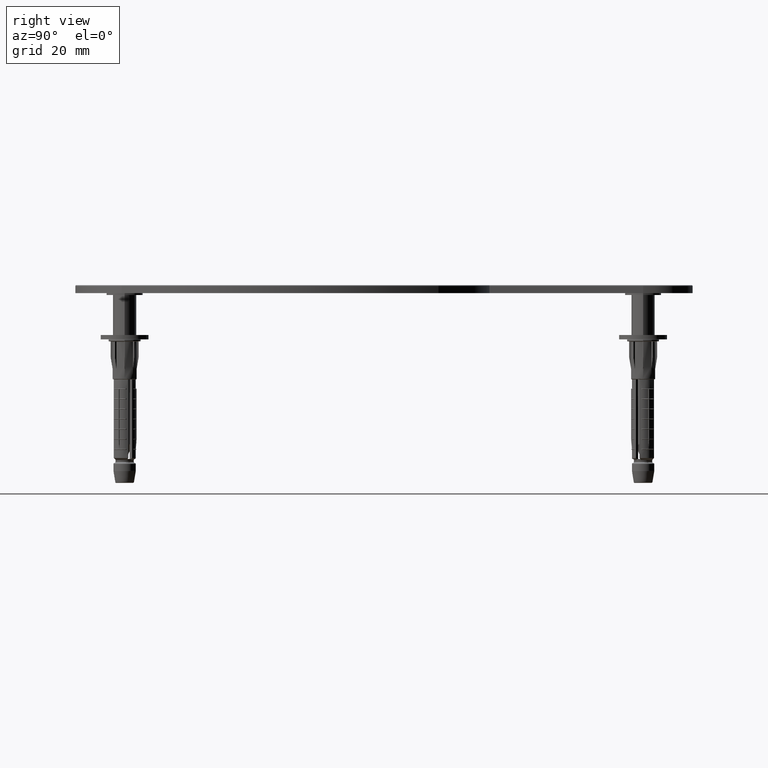
[diagram: clean part render]
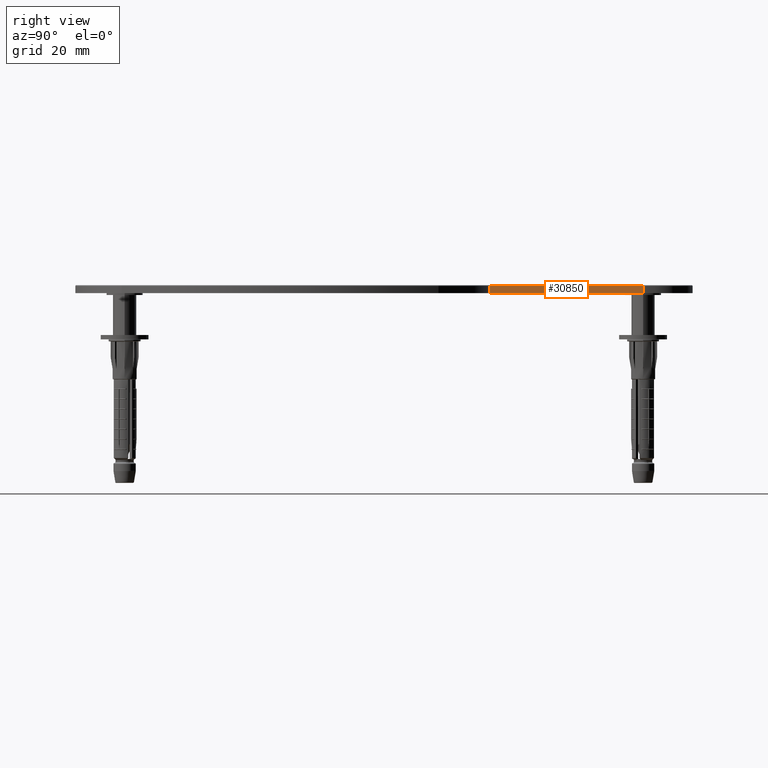
[diagram: same view with one face highlighted and labeled with its STEP entity id]
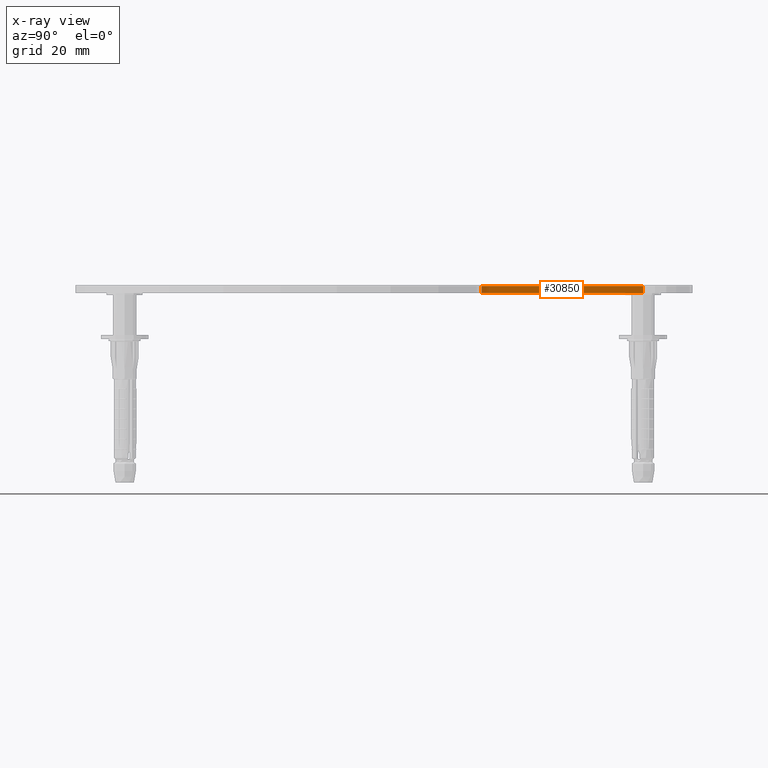
[diagram: x-ray of the same camera — body ghosted, the highlighted face saturated]
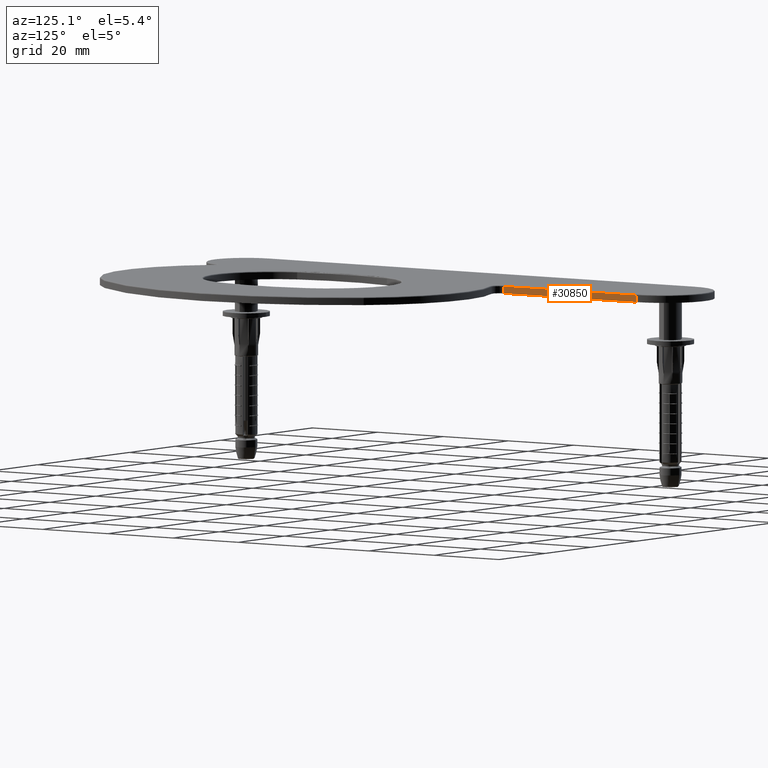
[diagram: same view with one face highlighted and labeled with its STEP entity id]
A machine part, right view. The second image highlights one B-rep face of the part: STEP entity #30850.
The next image is the same camera in x-ray: the body ghosted, the highlighted face saturated — about 5% of this face is hidden behind the body in this view.
A second angle (auxiliary view) of the same face is appended — the face is thin or edge-on in the first view.
In plain terms, the highlighted planar face has unit normal (1, 0, 0).
Its self-contained STEP definition (entity closure, byte-faithful):
#2476 = LINE ( 'NONE', #17958, #25436 ) ;
#5060 = LINE ( 'NONE', #8335, #25166 ) ;
#5272 = CARTESIAN_POINT ( 'NONE',  ( 14.99999999999997868, 140.0300000000000296, 1.750000000000000000 ) ) ;
#5476 = DIRECTION ( 'NONE',  ( 1.284980352575412699E-16, -1.000000000000000000, 0.000000000000000000 ) ) ;
#6269 = EDGE_CURVE ( 'NONE', #8306, #33926, #18632, .T. ) ;
#8306 = VERTEX_POINT ( 'NONE', #11846 ) ;
#8335 = CARTESIAN_POINT ( 'NONE',  ( 14.99999999999999645, 1.927470528863118556E-15, 1.750000000000000000 ) ) ;
#8336 = ORIENTED_EDGE ( 'NONE', *, *, #32845, .F. ) ;
#8715 = CARTESIAN_POINT ( 'NONE',  ( 14.99999999999998401, 99.53000000000001535, 0.000000000000000000 ) ) ;
#9090 = ORIENTED_EDGE ( 'NONE', *, *, #6269, .T. ) ;
#10459 = ORIENTED_EDGE ( 'NONE', *, *, #25104, .T. ) ;
#11054 = PLANE ( 'NONE',  #22966 ) ;
#11312 = DIRECTION ( 'NONE',  ( 1.000000000000000000, 1.284980352575412946E-16, -0.000000000000000000 ) ) ;
#11846 = CARTESIAN_POINT ( 'NONE',  ( 14.99999999999998401, 99.53000000000001535, 1.750000000000000000 ) ) ;
#12519 = ORIENTED_EDGE ( 'NONE', *, *, #31976, .F. ) ;
#14315 = VECTOR ( 'NONE', #18961, 1000.000000000000000 ) ;
#14930 = CARTESIAN_POINT ( 'NONE',  ( 14.99999999999997868, 140.0300000000000296, 0.000000000000000000 ) ) ;
#16898 = VERTEX_POINT ( 'NONE', #14930 ) ;
#17360 = DIRECTION ( 'NONE',  ( -1.284980352575412946E-16, 1.000000000000000000, 0.000000000000000000 ) ) ;
#17958 = CARTESIAN_POINT ( 'NONE',  ( 14.99999999999999645, 1.927470528863118556E-15, 0.000000000000000000 ) ) ;
#18121 = DIRECTION ( 'NONE',  ( 1.284980352575412946E-16, -1.000000000000000000, 0.000000000000000000 ) ) ;
#18439 = VERTEX_POINT ( 'NONE', #5272 ) ;
#18632 = LINE ( 'NONE', #18712, #14315 ) ;
#18712 = CARTESIAN_POINT ( 'NONE',  ( 14.99999999999998401, 99.53000000000001535, 2.000000000000000000 ) ) ;
#18961 = DIRECTION ( 'NONE',  ( -0.000000000000000000, -0.000000000000000000, -1.000000000000000000 ) ) ;
#20669 = CARTESIAN_POINT ( 'NONE',  ( 14.99999999999999645, 1.927470528863118556E-15, 2.000000000000000000 ) ) ;
#21076 = LINE ( 'NONE', #31351, #33981 ) ;
#22966 = AXIS2_PLACEMENT_3D ( 'NONE', #20669, #11312, #17360 ) ;
#25104 = EDGE_CURVE ( 'NONE', #18439, #8306, #5060, .T. ) ;
#25166 = VECTOR ( 'NONE', #18121, 1000.000000000000000 ) ;
#25436 = VECTOR ( 'NONE', #5476, 1000.000000000000000 ) ;
#25964 = FACE_OUTER_BOUND ( 'NONE', #27999, .T. ) ;
#27999 = EDGE_LOOP ( 'NONE', ( #8336, #10459, #9090, #12519 ) ) ;
#30850 = ADVANCED_FACE ( 'NONE', ( #25964 ), #11054, .T. ) ;
#31351 = CARTESIAN_POINT ( 'NONE',  ( 14.99999999999997868, 140.0300000000000296, 2.000000000000000000 ) ) ;
#31976 = EDGE_CURVE ( 'NONE', #16898, #33926, #2476, .T. ) ;
#32845 = EDGE_CURVE ( 'NONE', #18439, #16898, #21076, .T. ) ;
#33926 = VERTEX_POINT ( 'NONE', #8715 ) ;
#33981 = VECTOR ( 'NONE', #34279, 1000.000000000000000 ) ;
#34279 = DIRECTION ( 'NONE',  ( -0.000000000000000000, -0.000000000000000000, -1.000000000000000000 ) ) ;